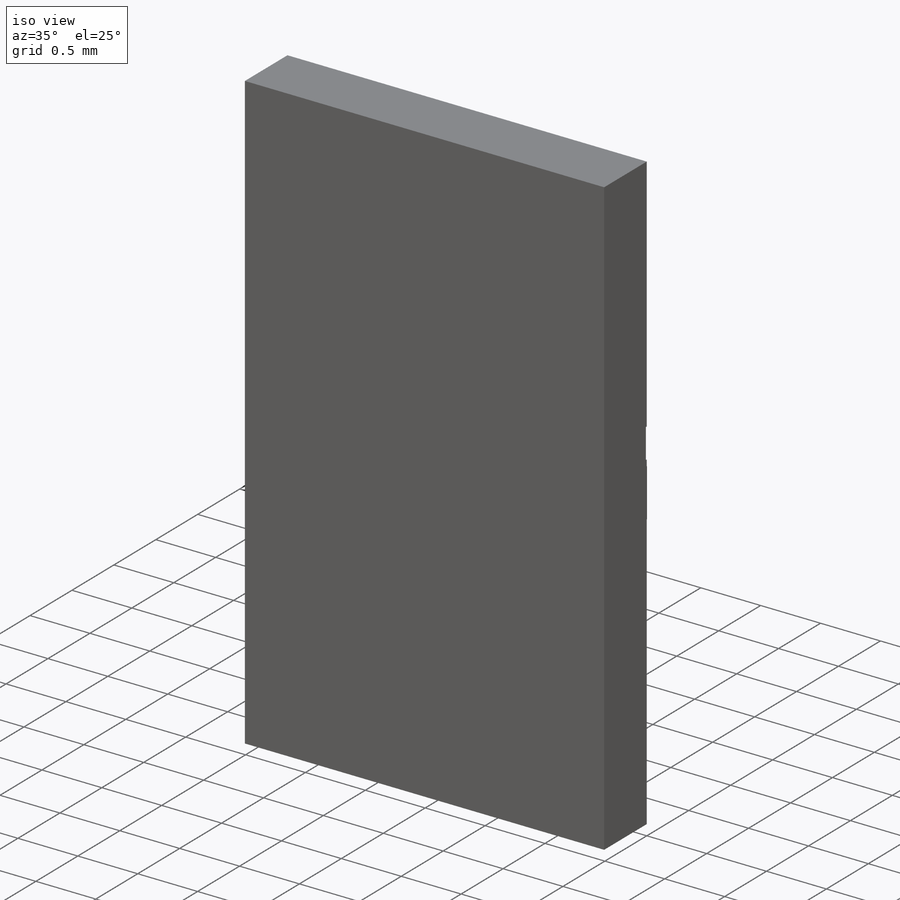
[diagram: iso view]
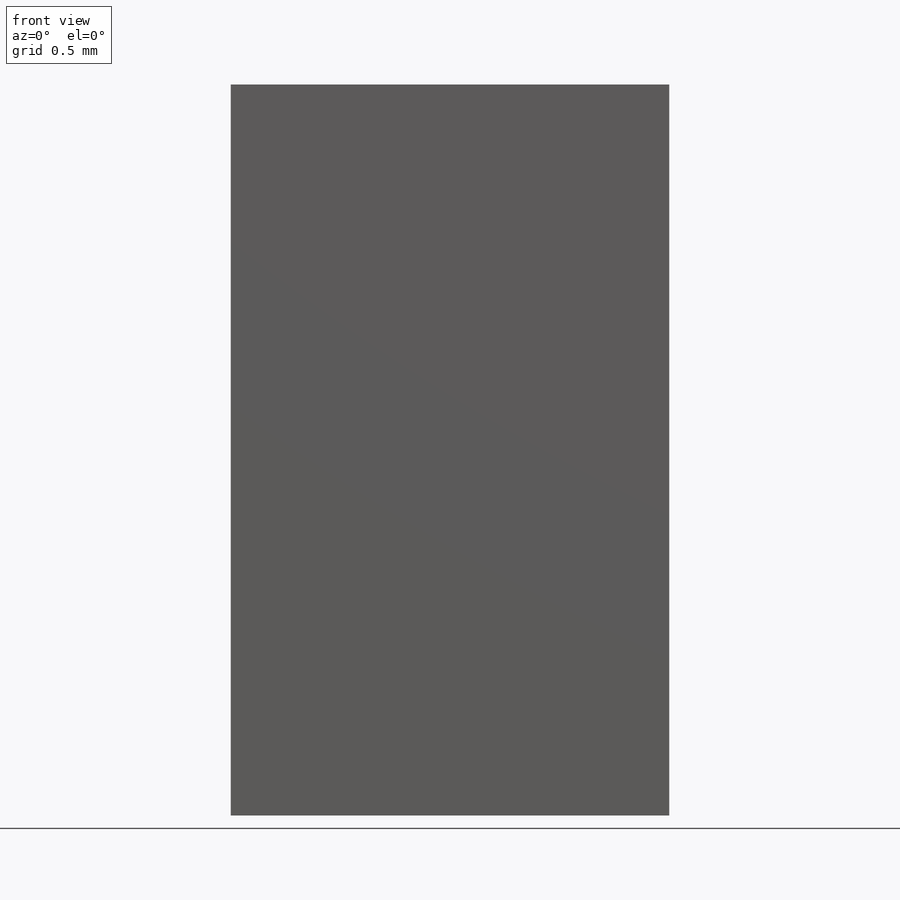
[diagram: front view]
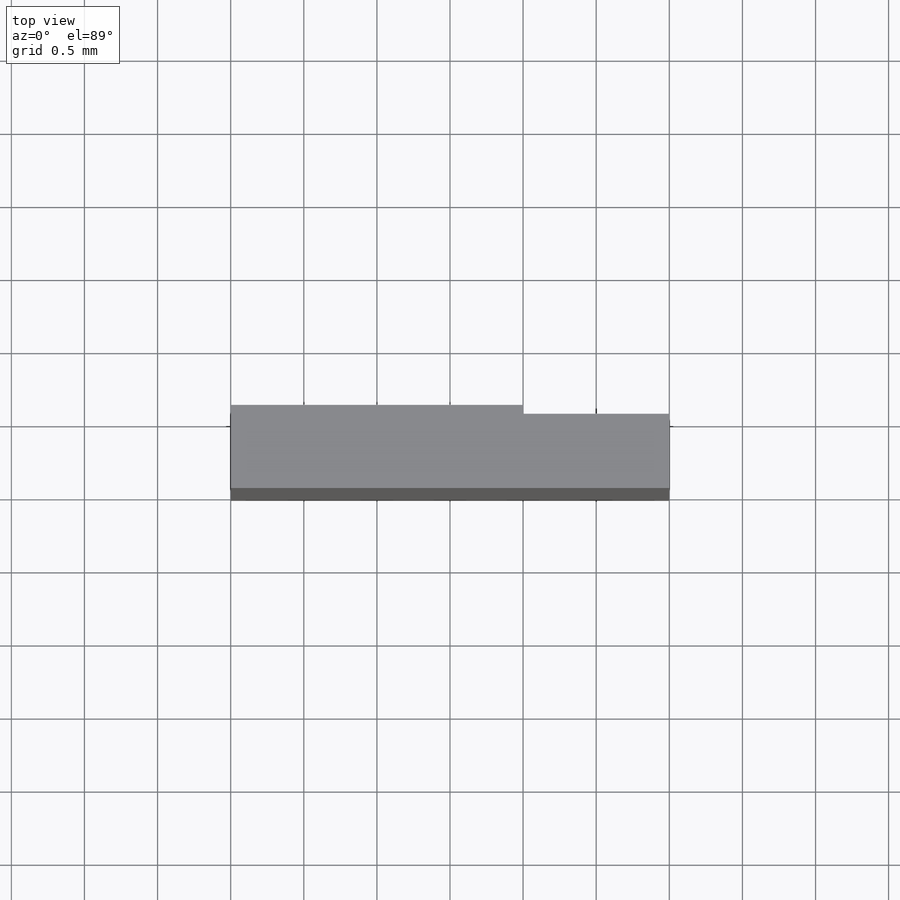
[diagram: top view]
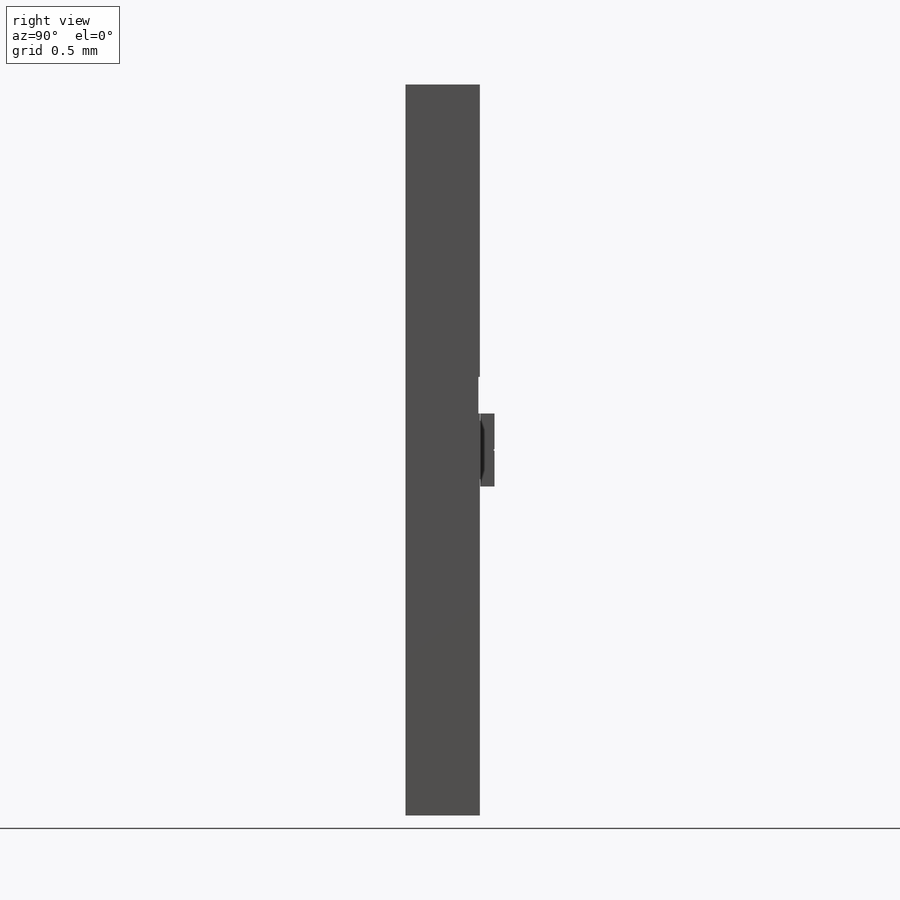
[diagram: right view]
SOLIDWORKS PART (.sldprt)
format: sldprt  version: not decoded by parser v0  size: 366,080 bytes
history: native  units: mm
features: sketch x11, extrude x8, cut_extrude x2, material x1 (+14 scaffold rows collapsed)
feature tree (36):
  scaffold x14  (default folders/planes/origin — collapsed)
  material  "Material <not specified>"
  sketch  "Sketch1"  dims[c1.D1=5.0mm c1.D2=3.0mm c2.D1=5.0mm]
  extrude  "Base-Extrude"  Depth=0.508mm
  sketch  "Sketch2"  dims[D1=2.0mm D2=0.25mm D3=0.01mm]
  cut_extrude  "Cut-Extrude1"  Depth=10mm
  sketch  "Sketch3"  dims[c1.D1=2.35mm c1.D2=2.35mm c2.D1=0.4mm c2.D2=2.3mm c2.D3=0.003mm]
  extrude  "Boss-Extrude2"  Depth=3mm
  sketch  "Sketch4"  dims[c1.D2=0.04mm c1.D4=0.04mm c1.D8=~0.078446mm c1.D9=0.04mm c1.D1=0.1mm c1.D3=0.1mm c2.D4=0.1mm c2.Vertical Edge Distance=0.1mm c2.D3=~0.091266mm c2.D5=0.08mm c2.D6=~0.086589mm c2.D7=~0.071214mm c2.D10=0.1mm c2.D11=0.1mm c2.D2=~0.086589mm c2.D1=~0.073124mm c3.D2=0.1mm]
  sketch  "Sketch9"  dims[D1=~0.061117mm D2=~0.082801mm D3=~0.100205mm D4=~0.056599mm D5=2.9mm]
  extrude  "Split Line4"  [1 undecoded]
  sketch  "Sketch10"  dims[c1.D1=0.04mm c1.D2=0.04mm c1.D3=0.04mm c2.D2=0.1mm c2.D3=0.1mm]
  extrude  "Split Line12"  [1 undecoded]
  sketch  "Sketch12"  dims[c1.D1=0.04mm c1.D3=0.04mm c1.D2=0.1mm c2.D3=0.1mm]
  extrude  "Split Line14"  [1 undecoded]
  sketch  "Sketch13"  dims[D1=0.1mm D2=0.1mm D3=0.05mm]
  extrude  "Split Line15"  [1 undecoded]
  sketch  "Sketch14"  dims[D1=~0.066973mm D2=~0.05832mm D3=~0.059346mm D4=0.1mm D5=0.1mm]
  extrude  "Split Line16"  [1 undecoded]
  sketch  "Sketch16"  dims[c1.D1=~0.334937mm c1.D2=1.9951mm c2.D1=0.5mm c2.D2=2.0mm c2.D3=0.25mm c2.D4=0.001mm]
  extrude  "Boss-Extrude3"  Depth=0.097mm
  sketch  "Sketch17"  dims[c1.D1=~0.015484mm c1.D2=~0.011044mm c2.D1=0.005mm c2.D2=0.01mm c2.D3=0.25mm]
  cut_extrude  "Cut-Extrude2"  [1 undecoded]
decode coverage: 15 of 21 modeling features carry decoded parameters
note: ~ marks probable driven/reference dimensions
note: 6 parameter values undecoded
summary: no parameter record found for 6 features
note: suppression state not decoded; provenance and decode notes live in map.json
